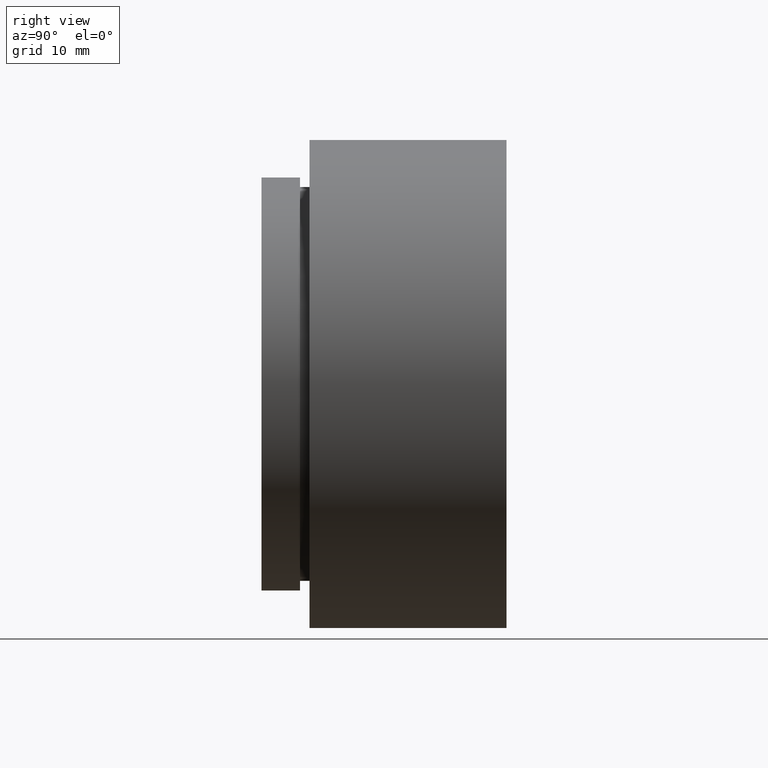
[diagram: clean part render]
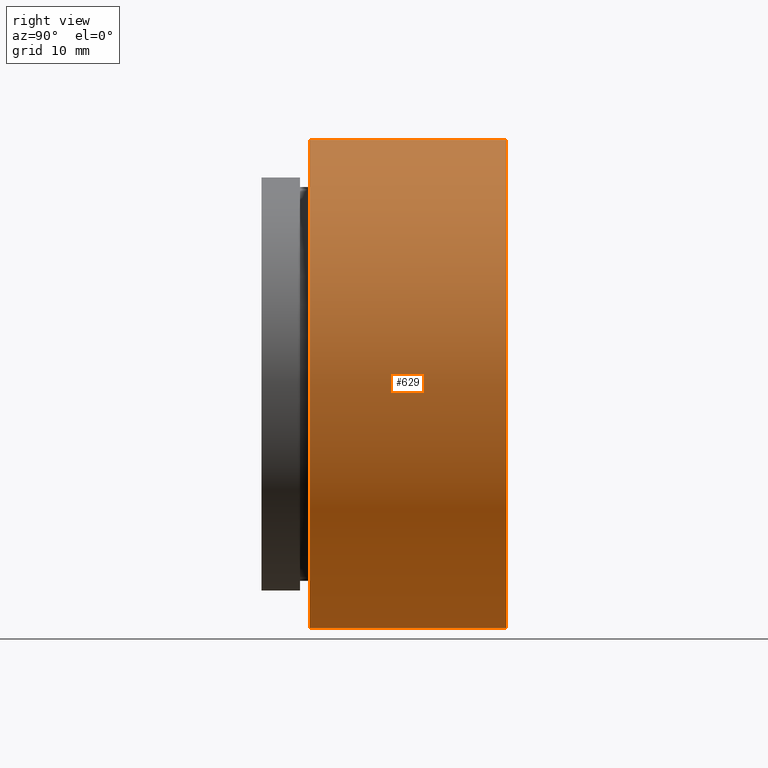
[diagram: same view with one face highlighted and labeled with its STEP entity id]
A machine part, right view. The second image highlights one B-rep face of the part: STEP entity #629.
In plain terms, the highlighted cylindrical surface (partial cylindrical patch) has radius 25.4 mm, axis along (-0, -1, -0).
Its self-contained STEP definition (entity closure, byte-faithful):
#5 = CARTESIAN_POINT ( 'NONE',  ( 0.0000000000000000000, 5.000000000000000000, -25.39999999999999900 ) ) ;
#11 = VERTEX_POINT ( 'NONE', #5 ) ;
#34 = EDGE_LOOP ( 'NONE', ( #465, #451, #330, #489 ) ) ;
#47 = DIRECTION ( 'NONE',  ( -0.0000000000000000000, -1.000000000000000000, -0.0000000000000000000 ) ) ;
#90 = CIRCLE ( 'NONE', #362, 25.39999999999999900 ) ;
#97 = VECTOR ( 'NONE', #47, 1000.000000000000000 ) ;
#121 = DIRECTION ( 'NONE',  ( -0.0000000000000000000, -1.000000000000000000, -0.0000000000000000000 ) ) ;
#125 = DIRECTION ( 'NONE',  ( 0.0000000000000000000, 0.0000000000000000000, -1.000000000000000000 ) ) ;
#168 = DIRECTION ( 'NONE',  ( -0.0000000000000000000, -1.000000000000000000, -0.0000000000000000000 ) ) ;
#178 = LINE ( 'NONE', #528, #192 ) ;
#187 = EDGE_CURVE ( 'NONE', #11, #405, #90, .T. ) ;
#192 = VECTOR ( 'NONE', #503, 1000.000000000000000 ) ;
#196 = CARTESIAN_POINT ( 'NONE',  ( 0.0000000000000000000, 25.50000000000000000, 0.0000000000000000000 ) ) ;
#213 = EDGE_CURVE ( 'NONE', #438, #405, #178, .T. ) ;
#237 = EDGE_CURVE ( 'NONE', #467, #438, #250, .T. ) ;
#250 = CIRCLE ( 'NONE', #337, 25.39999999999999900 ) ;
#303 = DIRECTION ( 'NONE',  ( -0.0000000000000000000, -1.000000000000000000, -0.0000000000000000000 ) ) ;
#322 = AXIS2_PLACEMENT_3D ( 'NONE', #534, #303, #400 ) ;
#330 = ORIENTED_EDGE ( 'NONE', *, *, #187, .F. ) ;
#337 = AXIS2_PLACEMENT_3D ( 'NONE', #196, #168, #430 ) ;
#340 = CYLINDRICAL_SURFACE ( 'NONE', #322, 25.39999999999999900 ) ;
#362 = AXIS2_PLACEMENT_3D ( 'NONE', #366, #121, #125 ) ;
#366 = CARTESIAN_POINT ( 'NONE',  ( 0.0000000000000000000, 5.000000000000000000, 0.0000000000000000000 ) ) ;
#400 = DIRECTION ( 'NONE',  ( 0.0000000000000000000, 0.0000000000000000000, -1.000000000000000000 ) ) ;
#405 = VERTEX_POINT ( 'NONE', #631 ) ;
#427 = CARTESIAN_POINT ( 'NONE',  ( 3.110602869834276900E-015, 25.50000000000000000, 25.39999999999999900 ) ) ;
#430 = DIRECTION ( 'NONE',  ( 0.0000000000000000000, 0.0000000000000000000, -1.000000000000000000 ) ) ;
#437 = FACE_OUTER_BOUND ( 'NONE', #34, .T. ) ;
#438 = VERTEX_POINT ( 'NONE', #427 ) ;
#451 = ORIENTED_EDGE ( 'NONE', *, *, #213, .T. ) ;
#456 = LINE ( 'NONE', #521, #97 ) ;
#465 = ORIENTED_EDGE ( 'NONE', *, *, #237, .T. ) ;
#467 = VERTEX_POINT ( 'NONE', #478 ) ;
#478 = CARTESIAN_POINT ( 'NONE',  ( 0.0000000000000000000, 25.50000000000000000, -25.39999999999999900 ) ) ;
#489 = ORIENTED_EDGE ( 'NONE', *, *, #672, .F. ) ;
#503 = DIRECTION ( 'NONE',  ( -0.0000000000000000000, -1.000000000000000000, -0.0000000000000000000 ) ) ;
#521 = CARTESIAN_POINT ( 'NONE',  ( 0.0000000000000000000, 0.0000000000000000000, -25.39999999999999900 ) ) ;
#528 = CARTESIAN_POINT ( 'NONE',  ( 3.110602869834276900E-015, 0.0000000000000000000, 25.39999999999999900 ) ) ;
#534 = CARTESIAN_POINT ( 'NONE',  ( 0.0000000000000000000, 0.0000000000000000000, 0.0000000000000000000 ) ) ;
#629 = ADVANCED_FACE ( 'NONE', ( #437 ), #340, .T. ) ;
#631 = CARTESIAN_POINT ( 'NONE',  ( 3.110602869834276900E-015, 5.000000000000000000, 25.39999999999999900 ) ) ;
#672 = EDGE_CURVE ( 'NONE', #467, #11, #456, .T. ) ;